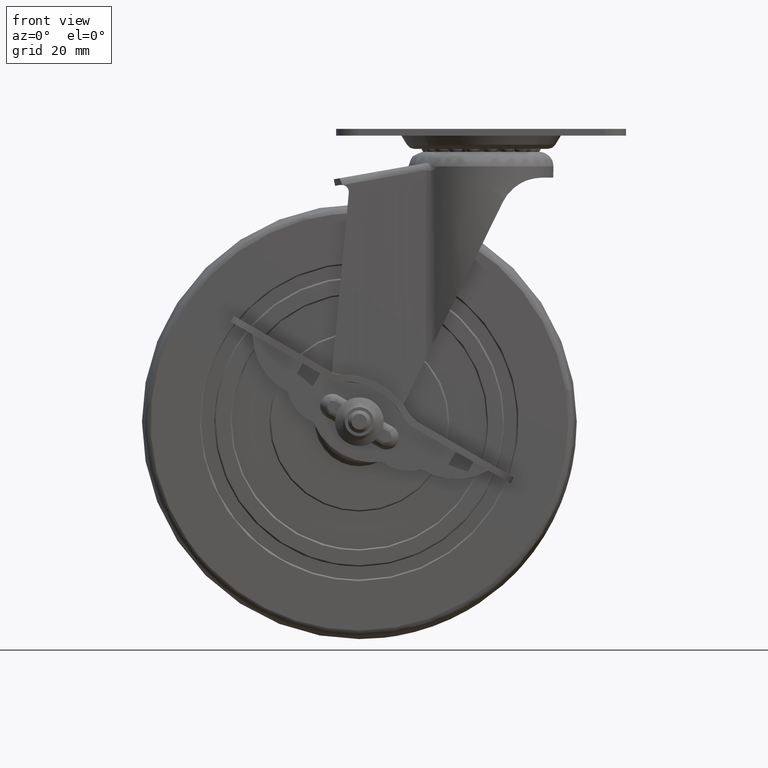
[diagram: clean part render]
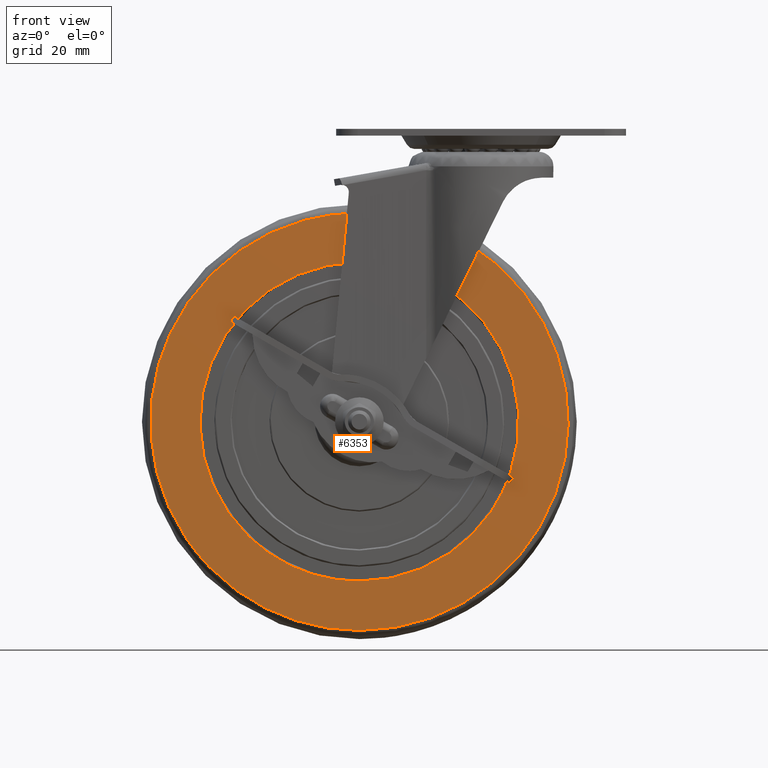
[diagram: same view with one face highlighted and labeled with its STEP entity id]
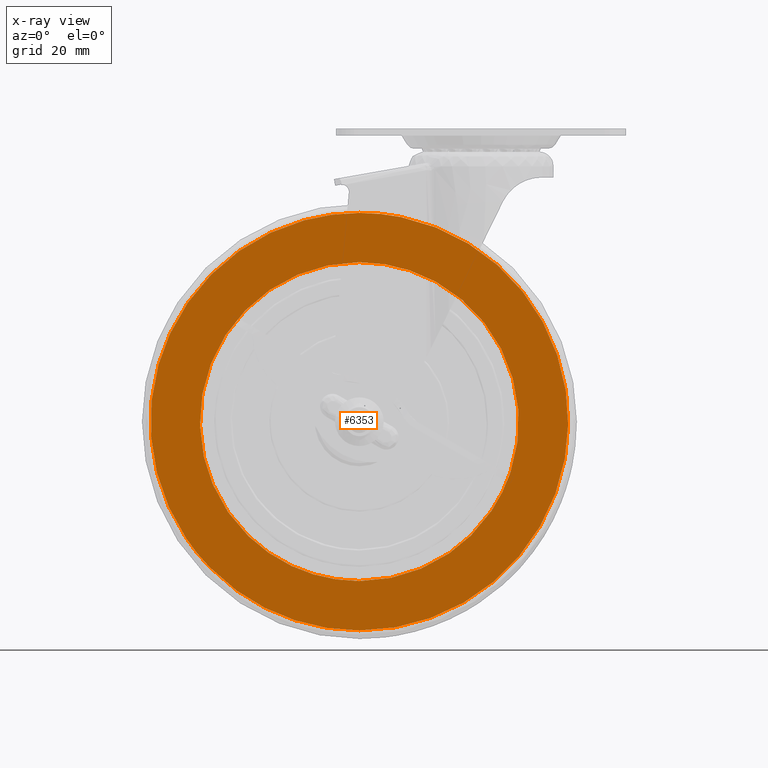
[diagram: x-ray of the same camera — body ghosted, the highlighted face saturated]
A machine part, front view. The second image highlights one B-rep face of the part: STEP entity #6353.
The next image is the same camera in x-ray: the body ghosted, the highlighted face saturated — about 0% of this face is hidden behind the body in this view.
In plain terms, the highlighted face is a freeform B-spline surface patch.
Its self-contained STEP definition (entity closure, byte-faithful):
#2695=CARTESIAN_POINT('',(52.136574072313117,-13.499999668968760,-17.515103733699409));
#2696=VERTEX_POINT('',#2695);
#2697=CARTESIAN_POINT('',(0.0,-13.499999668968760,55.000011048105200));
#2698=VERTEX_POINT('',#2697);
#2699=CARTESIAN_POINT('',(52.136574072313117,-13.499999668968760,-17.515103733699409));
#2700=CARTESIAN_POINT('',(53.087490725376078,-13.499999668968760,-14.685165547946539));
#2701=CARTESIAN_POINT('',(54.592323337621963,-13.499999668968741,-8.605599495642828));
#2702=CARTESIAN_POINT('',(55.213626384453889,-13.499999668968790,-0.045139578966578));
#2703=CARTESIAN_POINT('',(54.610055375294451,-13.499999668968711,7.545356013558628));
#2704=CARTESIAN_POINT('',(53.168445919605247,-13.499999668968851,14.741644384365591));
#2705=CARTESIAN_POINT('',(50.932382799533009,-13.499999668968520,21.171520090595159));
#2706=CARTESIAN_POINT('',(47.526093775060332,-13.499999668968920,27.974539371590339));
#2707=CARTESIAN_POINT('',(43.815295474700207,-13.499999668968851,33.516372141577449));
#2708=CARTESIAN_POINT('',(39.497439610326751,-13.499999668968620,38.406731141909567));
#2709=CARTESIAN_POINT('',(35.114506668669563,-13.499999668968901,42.470244676657202));
#2710=CARTESIAN_POINT('',(29.335550065165890,-13.499999668968719,46.775719932182220));
#2711=CARTESIAN_POINT('',(21.636226180708910,-13.499999668968719,50.867971581271377));
#2712=CARTESIAN_POINT('',(11.534339998154110,-13.499999668968821,54.155001241006786));
#2713=CARTESIAN_POINT('',(4.206823108240226,-13.499999668968700,55.000863142933532));
#2714=CARTESIAN_POINT('',(0.0,-13.499999668968760,55.000011048105200));
#2715=B_SPLINE_CURVE_WITH_KNOTS('',3,(#2699,#2700,#2701,#2702,#2703,#2704,#2705,#2706,#2707,#2708,#2709,#2710,#2711,#2712,#2713,#2714),.UNSPECIFIED.,.F.,.U.,(4,1,1,1,1,1,1,1,1,1,1,1,1,4),(0.000000120461820,8.956295994682876,18.726931124972939,25.647790469855511,31.754432210097050,40.710793899913938,46.003201019605790,54.552377788465812,60.659036948646218,65.544343529489907,72.465185504621601,82.235774392862709,91.599305429993322,104.219591435041100),.UNSPECIFIED.);
#2716=EDGE_CURVE('',#2696,#2698,#2715,.T.);
#2718=CARTESIAN_POINT('',(-23.417865725279949,-13.499999668968760,-49.765497850240550));
#2719=VERTEX_POINT('',#2718);
#2720=CARTESIAN_POINT('',(0.0,-13.499999668968760,55.000011048105200));
#2721=CARTESIAN_POINT('',(-2.902299704401560,-13.499999668968780,55.000206024813487));
#2722=CARTESIAN_POINT('',(-7.642602054642350,-13.499999668968711,54.623868635382628));
#2723=CARTESIAN_POINT('',(-14.465905642427421,-13.499999668968810,53.180645379235060));
#2724=CARTESIAN_POINT('',(-21.367796509188679,-13.499999668968711,50.899431201981422));
#2725=CARTESIAN_POINT('',(-28.825095934016019,-13.499999668968931,47.139548809942262));
#2726=CARTESIAN_POINT('',(-35.552878343883847,-13.499999668968410,42.200614460647650));
#2727=CARTESIAN_POINT('',(-41.033385405025108,-13.499999668968931,36.853558075868243));
#2728=CARTESIAN_POINT('',(-45.060037027896129,-13.499999668969229,31.754764794641559));
#2729=CARTESIAN_POINT('',(-48.515647231740950,-13.499999668967700,26.148164872225209));
#2730=CARTESIAN_POINT('',(-51.042525304585460,-13.499999668969330,20.802083271788639));
#2731=CARTESIAN_POINT('',(-53.289897335483737,-13.499999668968499,14.199887633833750));
#2732=CARTESIAN_POINT('',(-54.804355033011447,-13.499999668968830,6.784927660042496));
#2733=CARTESIAN_POINT('',(-55.154931286735099,-13.499999668968821,-0.873698506965336));
#2734=CARTESIAN_POINT('',(-54.479842215097307,-13.499999668968780,-8.691776800785391));
#2735=CARTESIAN_POINT('',(-52.886121725794119,-13.499999668968140,-15.795190552578211));
#2736=CARTESIAN_POINT('',(-49.834574798992762,-13.499999668969370,-23.761246512140389));
#2737=CARTESIAN_POINT('',(-45.904218664288038,-13.499999668968510,-30.686712819378240));
#2738=CARTESIAN_POINT('',(-41.513014737583731,-13.499999668968799,-36.237443287881909));
#2739=CARTESIAN_POINT('',(-37.313673893318587,-13.499999668968769,-40.526862882295582));
#2740=CARTESIAN_POINT('',(-31.747443643198601,-13.499999668968741,-45.200254520262362));
#2741=CARTESIAN_POINT('',(-26.744435568481219,-13.499999668968711,-48.200675918632868));
#2742=CARTESIAN_POINT('',(-23.417865725279949,-13.499999668968760,-49.765497850240550));
#2743=B_SPLINE_CURVE_WITH_KNOTS('',3,(#2720,#2721,#2722,#2723,#2724,#2725,#2726,#2727,#2728,#2729,#2730,#2731,#2732,#2733,#2734,#2735,#2736,#2737,#2738,#2739,#2740,#2741,#2742),.UNSPECIFIED.,.F.,.U.,(4,1,1,1,1,1,1,1,1,1,1,1,1,1,1,1,1,1,1,1,4),(0.000000325624256,8.706866458262624,14.221143415745219,20.896529579124770,30.474073680518501,39.180999064668839,45.856318446407812,53.402260564381962,58.626409165865013,65.591985361988435,71.106329927876018,79.522756881476056,88.229778231897001,94.034376684792363,103.031460552204000,109.996999164825890,119.574586971978900,126.830346429911900,131.183766352720910,137.568931388943410,148.597534752630310),.UNSPECIFIED.);
#2744=EDGE_CURVE('',#2698,#2719,#2743,.T.);
#2804=CARTESIAN_POINT('',(0.0,-13.499999668968760,-55.000011048105200));
#2805=VERTEX_POINT('',#2804);
#2806=CARTESIAN_POINT('',(0.0,-13.499999668968760,-55.000011048105200));
#2807=CARTESIAN_POINT('',(2.946304668333212,-13.499999668968760,-55.000235995942838));
#2808=CARTESIAN_POINT('',(7.856717134652484,-13.499999668968750,-54.604426713689563));
#2809=CARTESIAN_POINT('',(15.195412183243310,-13.499999668968810,-53.007454684641090));
#2810=CARTESIAN_POINT('',(21.527406347603360,-13.499999668968620,-50.778581182505512));
#2811=CARTESIAN_POINT('',(27.994201974567151,-13.499999668968901,-47.513857044805562));
#2812=CARTESIAN_POINT('',(33.333273204497253,-13.499999668968670,-43.907047018678341));
#2813=CARTESIAN_POINT('',(38.819423944918412,-13.499999668968631,-39.182028461086560));
#2814=CARTESIAN_POINT('',(44.020501048879872,-13.499999668968600,-33.379121120731540));
#2815=CARTESIAN_POINT('',(48.836704106769048,-13.499999668969309,-25.824980188845501));
#2816=CARTESIAN_POINT('',(51.198480024358297,-13.499999668968441,-20.308066120766981));
#2817=CARTESIAN_POINT('',(52.136574072313117,-13.499999668968760,-17.515103733699409));
#2818=B_SPLINE_CURVE_WITH_KNOTS('',3,(#2806,#2807,#2808,#2809,#2810,#2811,#2812,#2813,#2814,#2815,#2816,#2817),.UNSPECIFIED.,.F.,.U.,(4,1,1,1,1,1,1,1,1,4),(0.000000082538449,8.838879792644683,14.731478676677559,22.499004650530679,28.927284184956878,36.426861217261759,41.783788180848113,50.622719764080692,59.729478135892997,68.568344887845697),.UNSPECIFIED.);
#2819=EDGE_CURVE('',#2805,#2696,#2818,.T.);
#2825=CARTESIAN_POINT('',(-23.417865725279949,-13.499999668968760,-49.765497850240550));
#2826=CARTESIAN_POINT('',(-20.795933923044650,-13.499999668968730,-50.999499399392512));
#2827=CARTESIAN_POINT('',(-16.420669226608702,-13.499999668968810,-52.649963336512478));
#2828=CARTESIAN_POINT('',(-8.567257830970597,-13.499999668968711,-54.519121293617403));
#2829=CARTESIAN_POINT('',(-3.401797417149193,-13.499999668968830,-55.000424733858431));
#2830=CARTESIAN_POINT('',(0.0,-13.499999668968760,-55.000011048105200));
#2831=B_SPLINE_CURVE_WITH_KNOTS('',3,(#2825,#2826,#2827,#2828,#2829,#2830),.UNSPECIFIED.,.F.,.U.,(4,1,1,4),(0.000000010613395,8.693396457227317,13.985019624574990,24.190315888064159),.UNSPECIFIED.);
#2832=EDGE_CURVE('',#2719,#2805,#2831,.T.);
#4570=CARTESIAN_POINT('',(-18.968385858765519,-13.499999668968361,69.477735947452160));
#4571=VERTEX_POINT('',#4570);
#4572=CARTESIAN_POINT('',(0.0,-13.499999668968760,-72.020521048105110));
#4573=VERTEX_POINT('',#4572);
#4574=CARTESIAN_POINT('',(-18.968385858765519,-13.499999668968361,69.477735947452160));
#4575=CARTESIAN_POINT('',(-22.219569722237289,-13.499999668968391,68.590241003439175));
#4576=CARTESIAN_POINT('',(-28.852210605582279,-13.499999668968320,66.268426327156533));
#4577=CARTESIAN_POINT('',(-36.995058258708738,-13.499999668968460,62.001176300885042));
#4578=CARTESIAN_POINT('',(-43.772717105533310,-13.499999668968520,57.329696952429877));
#4579=CARTESIAN_POINT('',(-50.179596215745029,-13.499999668968419,51.945642883200598));
#4580=CARTESIAN_POINT('',(-56.306947474495949,-13.499999668968609,45.271816043664309));
#4581=CARTESIAN_POINT('',(-62.529923981846110,-13.499999668968529,36.275929382648187));
#4582=CARTESIAN_POINT('',(-66.884250938038505,-13.499999668968680,27.406481558628460));
#4583=CARTESIAN_POINT('',(-69.894000952583085,-13.499999668968570,18.020661771991161));
#4584=CARTESIAN_POINT('',(-71.413539342076135,-13.499999668968760,10.337032905179040));
#4585=CARTESIAN_POINT('',(-72.153544435160484,-13.499999668969130,2.002170028525971));
#4586=CARTESIAN_POINT('',(-71.956136151746989,-13.499999668967440,-5.426352754150087));
#4587=CARTESIAN_POINT('',(-70.916394669885420,-13.499999668969711,-13.181795939293750));
#4588=CARTESIAN_POINT('',(-69.018609660220193,-13.499999668968380,-21.335060569970491));
#4589=CARTESIAN_POINT('',(-65.749335619640675,-13.499999668968570,-29.929520383550081));
#4590=CARTESIAN_POINT('',(-60.780804819261959,-13.499999668969879,-39.062070175141102));
#4591=CARTESIAN_POINT('',(-55.158442467937000,-13.499999668966330,-46.679690803238550));
#4592=CARTESIAN_POINT('',(-49.197841673759783,-13.499999668969471,-52.750315279658992));
#4593=CARTESIAN_POINT('',(-43.518942852046877,-13.499999668968551,-57.524965285531323));
#4594=CARTESIAN_POINT('',(-36.626197957152563,-13.499999668968981,-62.277918869084843));
#4595=CARTESIAN_POINT('',(-27.324492469786851,-13.499999668968760,-66.957138972239818));
#4596=CARTESIAN_POINT('',(-17.404841905654731,-13.499999668968830,-70.121943490030247));
#4597=CARTESIAN_POINT('',(-8.223214378737348,-13.499999668968769,-71.709800187338772));
#4598=CARTESIAN_POINT('',(-2.696144781257069,-13.499999668968769,-72.020576091376100));
#4599=CARTESIAN_POINT('',(0.0,-13.499999668968760,-72.020521048105110));
#4600=B_SPLINE_CURVE_WITH_KNOTS('',3,(#4574,#4575,#4576,#4577,#4578,#4579,#4580,#4581,#4582,#4583,#4584,#4585,#4586,#4587,#4588,#4589,#4590,#4591,#4592,#4593,#4594,#4595,#4596,#4597,#4598,#4599),.UNSPECIFIED.,.F.,.U.,(4,1,1,1,1,1,1,1,1,1,1,1,1,1,1,1,1,1,1,1,1,1,1,4),(0.000000266489081,10.110427180368671,21.029995528446729,27.500676156738908,34.780317542781091,46.104207785228617,54.597124826097229,67.538712684700045,75.627126404408642,84.120107313608486,90.995321718913374,100.701478426231110,106.363100266978710,114.451672638478700,125.775555359793000,133.863939158773290,145.592258065324100,154.085171628867500,159.342690286424610,167.835602672406510,179.159409522408710,190.483312146109400,198.976148740229600,207.064589798685600),.UNSPECIFIED.);
#4601=EDGE_CURVE('',#4571,#4573,#4600,.T.);
#4674=CARTESIAN_POINT('',(71.203213841822077,-13.499999668968330,10.819325211668200));
#4675=VERTEX_POINT('',#4674);
#4686=CARTESIAN_POINT('',(0.0,-13.499999668968760,-72.020521048105110));
#4687=CARTESIAN_POINT('',(4.036136606470317,-13.499999668968760,-72.020862319264651));
#4688=CARTESIAN_POINT('',(10.655256394328310,-13.499999668968830,-71.462555501394036));
#4689=CARTESIAN_POINT('',(19.644952429724299,-13.499999668968790,-69.434041409748417));
#4690=CARTESIAN_POINT('',(27.599998486622219,-13.499999668968879,-66.713590111512630));
#4691=CARTESIAN_POINT('',(34.737411522054643,-13.499999668968851,-63.260726654091762));
#4692=CARTESIAN_POINT('',(41.713390485030338,-13.499999668968769,-58.872122564671074));
#4693=CARTESIAN_POINT('',(49.091195219771272,-13.499999668968879,-53.078076908917069));
#4694=CARTESIAN_POINT('',(56.746280042399732,-13.499999668968600,-44.922163218140767));
#4695=CARTESIAN_POINT('',(62.891463457850378,-13.499999668968920,-35.587239836967598));
#4696=CARTESIAN_POINT('',(67.517093583903872,-13.499999668968311,-25.787311657038678));
#4697=CARTESIAN_POINT('',(70.356680011211822,-13.499999668968711,-16.490341868562940));
#4698=CARTESIAN_POINT('',(71.681011407230784,-13.499999668968471,-8.022613546708463));
#4699=CARTESIAN_POINT('',(72.213285455556360,-13.499999668968330,0.685145311674737));
#4700=CARTESIAN_POINT('',(71.834246387625939,-13.499999668968499,6.669427153471186));
#4701=CARTESIAN_POINT('',(71.203213841822077,-13.499999668968330,10.819325211668200));
#4702=B_SPLINE_CURVE_WITH_KNOTS('',3,(#4686,#4687,#4688,#4689,#4690,#4691,#4692,#4693,#4694,#4695,#4696,#4697,#4698,#4699,#4700,#4701),.UNSPECIFIED.,.F.,.U.,(4,1,1,1,1,1,1,1,1,1,1,1,1,4),(0.000000074039761,12.108354906500111,19.857772265131469,27.607196147378222,37.293964488051870,43.590368460160882,52.308444327473708,65.385409097205667,77.009525373036155,85.727605295643087,97.836067029994410,106.069794535222700,111.397535703178090,123.990242284744200),.UNSPECIFIED.);
#4703=EDGE_CURVE('',#4573,#4675,#4702,.T.);
#4731=CARTESIAN_POINT('',(0.0,-13.499999668968760,72.020521048105110));
#4732=VERTEX_POINT('',#4731);
#4733=CARTESIAN_POINT('',(0.0,-13.499999668968760,72.020521048105110));
#4734=CARTESIAN_POINT('',(-2.799248581941065,-13.499999668968760,72.020582161555353));
#4735=CARTESIAN_POINT('',(-9.197507951589447,-13.499999668968670,71.647027659829064));
#4736=CARTESIAN_POINT('',(-15.496474344641310,-13.499999668968551,70.425856852655301));
#4737=CARTESIAN_POINT('',(-18.968385858765519,-13.499999668968361,69.477735947452160));
#4738=B_SPLINE_CURVE_WITH_KNOTS('',3,(#4733,#4734,#4735,#4736,#4737),.UNSPECIFIED.,.F.,.U.,(4,1,4),(3.307232E-009,8.397746588272616,19.194835962363790),.UNSPECIFIED.);
#4739=EDGE_CURVE('',#4732,#4571,#4738,.T.);
#4741=CARTESIAN_POINT('',(71.203213841822077,-13.499999668968330,10.819325211668200));
#4742=CARTESIAN_POINT('',(70.743199852863370,-13.499999668968449,13.847312127554410));
#4743=CARTESIAN_POINT('',(69.379251400123806,-13.499999668968201,20.105231408732170));
#4744=CARTESIAN_POINT('',(66.240934023571839,-13.499999668968620,28.764411168470541));
#4745=CARTESIAN_POINT('',(62.090231405730513,-13.499999668968449,36.829493382163768));
#4746=CARTESIAN_POINT('',(57.307653336744849,-13.499999668968840,43.902694412783987));
#4747=CARTESIAN_POINT('',(52.242346601056909,-13.499999668968311,49.750538869468173));
#4748=CARTESIAN_POINT('',(46.430385373925994,-13.499999668968931,55.243050198960283));
#4749=CARTESIAN_POINT('',(38.775183385319473,-13.499999668968631,61.050880837222252));
#4750=CARTESIAN_POINT('',(28.987002297620830,-13.499999668968711,66.283067855833977));
#4751=CARTESIAN_POINT('',(18.746506341243158,-13.499999668968689,69.759070042906941));
#4752=CARTESIAN_POINT('',(9.321345599941497,-13.499999668968780,71.612116903973799));
#4753=CARTESIAN_POINT('',(3.195896494968734,-13.499999668968769,72.020636616856549));
#4754=CARTESIAN_POINT('',(0.0,-13.499999668968760,72.020521048105110));
#4755=B_SPLINE_CURVE_WITH_KNOTS('',3,(#4741,#4742,#4743,#4744,#4745,#4746,#4747,#4748,#4749,#4750,#4751,#4752,#4753,#4754),.UNSPECIFIED.,.F.,.U.,(4,1,1,1,1,1,1,1,1,1,1,4),(0.000000093336311,9.188195053899705,19.175476199181290,27.564764862119301,36.353569833780853,44.742875329857313,50.735217060128093,60.322824312908480,73.506031904355211,83.892781672990381,92.681578192044142,102.269262332946500),.UNSPECIFIED.);
#4756=EDGE_CURVE('',#4675,#4732,#4755,.T.);
#6336=CARTESIAN_POINT('',(-79.161531575318890,-13.499999668968760,79.215373525939796));
#6337=CARTESIAN_POINT('',(-79.161531575318890,-13.499999668968760,-79.215374813767085));
#6338=CARTESIAN_POINT('',(79.195598199744936,-13.499999668968760,79.215373525939796));
#6339=CARTESIAN_POINT('',(79.195598199744936,-13.499999668968760,-79.215374813767085));
#6340=B_SPLINE_SURFACE_WITH_KNOTS('',1,1,((#6336,#6338),(#6337,#6339)),.UNSPECIFIED.,.F.,.F.,.U.,(2,2),(2,2),(0.0,158.430748339706890),(0.0,158.357129775063810),.UNSPECIFIED.);
#6341=ORIENTED_EDGE('',*,*,#4703,.T.);
#6342=ORIENTED_EDGE('',*,*,#4756,.T.);
#6343=ORIENTED_EDGE('',*,*,#4739,.T.);
#6344=ORIENTED_EDGE('',*,*,#4601,.T.);
#6345=EDGE_LOOP('',(#6341,#6342,#6343,#6344));
#6346=FACE_OUTER_BOUND('',#6345,.T.);
#6347=ORIENTED_EDGE('',*,*,#2744,.F.);
#6348=ORIENTED_EDGE('',*,*,#2716,.F.);
#6349=ORIENTED_EDGE('',*,*,#2819,.F.);
#6350=ORIENTED_EDGE('',*,*,#2832,.F.);
#6351=EDGE_LOOP('',(#6347,#6348,#6349,#6350));
#6352=FACE_BOUND('',#6351,.T.);
#6353=ADVANCED_FACE('',(#6346,#6352),#6340,.T.);